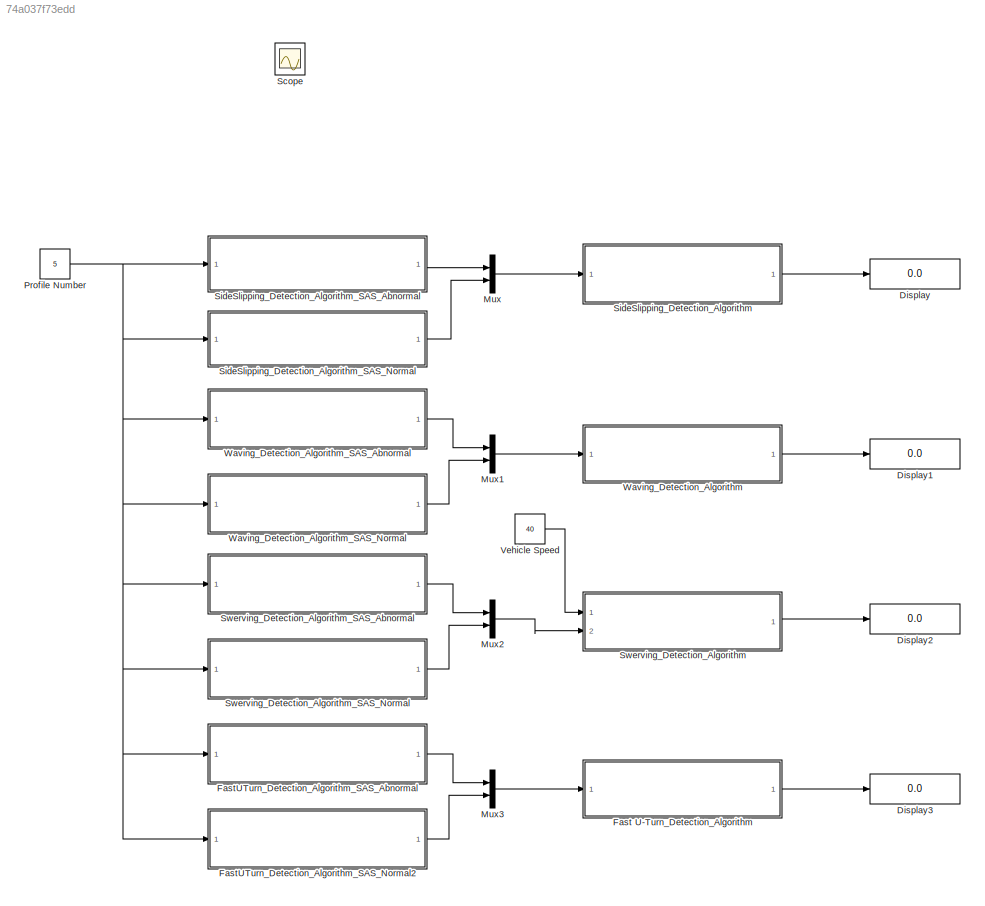
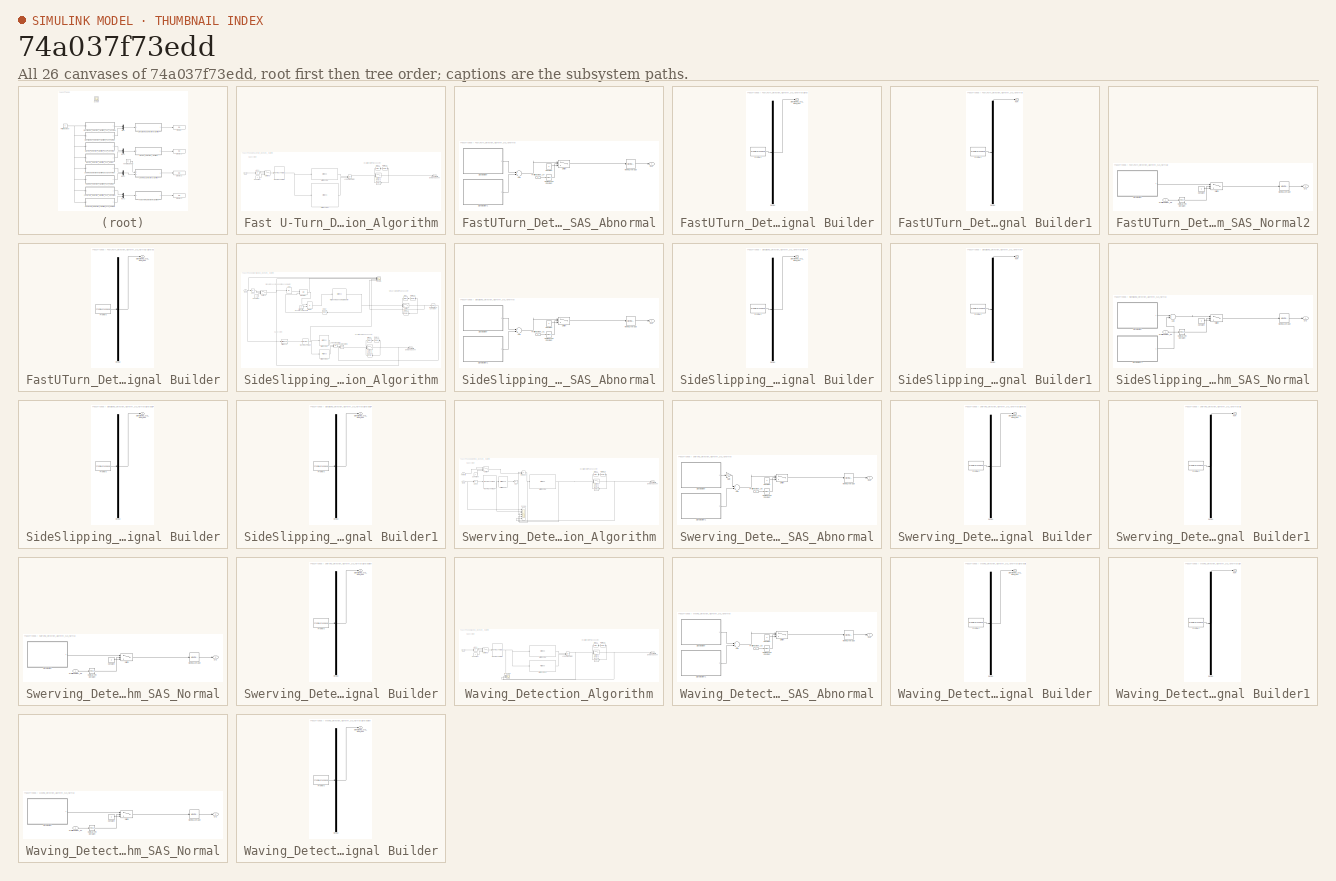
[diagram: thumbnail index - all 26 canvases of the model, root first then tree order]
MODEL slx_74a037f73edd
KIND model
CONFIG AbsTol = auto
CONFIG EnableMultiTasking = off
CONFIG FixedStep = 0.01
CONFIG MaxStep = auto
CONFIG MinStep = auto
CONFIG RelTol = 1e-3
CONFIG SampleTimeConstraint = Unconstrained
CONFIG Solver = FixedStepAuto
CONFIG SolverName = FixedStepAuto
CONFIG StartTime = 0.0
CONFIG StopTime = 120
BLOCK [Display] Display
  Commented = on
  Decimation = 1
  Ports = [1]
BLOCK [Display] Display1
  Commented = on
  Decimation = 1
  Ports = [1]
BLOCK [Display] Display2
  Decimation = 1
  Ports = [1]
BLOCK [Display] Display3
  Commented = on
  Decimation = 1
  Ports = [1]
BLOCK [SubSystem] Fast U-Turn_Detection_Algorithm
  Commented = on
  Ports = [1, 1]
  RequestExecContextInheritance = off
  Variant = off
BLOCK [Outport] Fast U-Turn_Detection_Algorithm/Abnormality Deletced Count
  IconDisplay = Port number
BLOCK [Abs] Fast U-Turn_Detection_Algorithm/Abs1
  SaturateOnIntegerOverflow = off
BLOCK [Bias] Fast U-Turn_Detection_Algorithm/Bias1
  Bias = 1
  SaturateOnIntegerOverflow = off
BLOCK [Constant] Fast U-Turn_Detection_Algorithm/Constant
  Value = 0
BLOCK [Delay] Fast U-Turn_Detection_Algorithm/Delay3
  DelayLength = 1
  InputPortMap = u0
  Ports = [1, 1]
BLOCK [Delay] Fast U-Turn_Detection_Algorithm/Delay4
  DelayLength = 1
  InputPortMap = u0
  Ports = [1, 1]
BLOCK [HitCross] Fast U-Turn_Detection_Algorithm/Hit Crossing
  HitCrossingDirection = rising
  HitCrossingOffset = 1.2
  Ports = [1, 1]
BLOCK [HitCross] Fast U-Turn_Detection_Algorithm/Hit Crossing1
  HitCrossingDirection = falling
  HitCrossingOffset = -0.5
  Ports = [1, 1]
BLOCK [Logic] Fast U-Turn_Detection_Algorithm/Logical Operator
  AllPortsSameDT = off
  Operator = OR
  OutDataTypeStr = boolean
  Ports = [2, 1]
BLOCK [Reference] Fast U-Turn_Detection_Algorithm/Moving Average  REF=dspstat3/Moving
Average
  Ports = [1, 1]
  SourceBlock = dspstat3/Moving\nAverage
  SourceProductBaseCode = DS
  SourceProductName = DSP System Toolbox
  SourceType = dsp.MovingAverage
BLOCK [Inport] Fast U-Turn_Detection_Algorithm/SAS
  IconDisplay = Port number
BLOCK [Switch] Fast U-Turn_Detection_Algorithm/Switch1
  Criteria = u2 > Threshold
  InputSameDT = off
  SaturateOnIntegerOverflow = off
BLOCK [Switch] Fast U-Turn_Detection_Algorithm/Switch2
  Criteria = u2 > Threshold
  InputSameDT = off
  SaturateOnIntegerOverflow = off
  Threshold = 1
BLOCK [SubSystem] FastUTurn_Detection_Algorithm_SAS_Abnormal
  Commented = on
  Ports = [1, 1]
  RequestExecContextInheritance = off
  Variant = off
BLOCK [Sum] FastUTurn_Detection_Algorithm_SAS_Abnormal/Add
  InputSameDT = off
  OutDataTypeStr = Inherit: Inherit via internal rule
  Ports = [2, 1]
  SaturateOnIntegerOverflow = off
BLOCK [Reference] FastUTurn_Detection_Algorithm_SAS_Abnormal/Compare To Constant  REF=simulink/Logic and Bit
Operations/Compare
To Constant
  Ports = [1, 1]
  SourceBlock = simulink/Logic and Bit\nOperations/Compare\nTo Constant
  SourceProductBaseCode = SL
  SourceProductName = Simulink
  SourceType = Compare To Constant
BLOCK [Constant] FastUTurn_Detection_Algorithm_SAS_Abnormal/Constant
  Value = 0
BLOCK [Reference] FastUTurn_Detection_Algorithm_SAS_Abnormal/Moving Average  REF=dspstat3/Moving
Average
  Ports = [1, 1]
  SourceBlock = dspstat3/Moving\nAverage
  SourceProductBaseCode = DS
  SourceProductName = DSP System Toolbox
  SourceType = dsp.MovingAverage
BLOCK [Inport] FastUTurn_Detection_Algorithm_SAS_Abnormal/ProfileNumber_07
  IconDisplay = Port number
BLOCK [Outport] FastUTurn_Detection_Algorithm_SAS_Abnormal/SAS
  IconDisplay = Port number
BLOCK [SubSystem] FastUTurn_Detection_Algorithm_SAS_Abnormal/Signal Builder
  ClipboardFcn = sigbuilder_block('clipboard');
  CloseFcn = sigbuilder_block('close');
  ContinueFcn = sigbuilder_block('continue');
  CopyFcn = sigbuilder_block('copy');
  DeleteFcn = sigbuilder_block('delete');
  LoadFcn = sigbuilder_block('load');
  MaskHideContents = on
  ModelCloseFcn = sigbuilder_block('modelClose');
  NameChangeFcn = sigbuilder_block('namechange');
  OpenFcn = sigbuilder_block('open',[6 30 1428 682.5 ]);
  PauseFcn = sigbuilder_block('pause');
  Ports = [0, 1]
  PreSaveFcn = sigbuilder_block('preSave');
  RequestExecContextInheritance = off
  StartFcn = sigbuilder_block('start');
  StopFcn = sigbuilder_block('stop');
  Tag = STV Subsys
  Variant = off
BLOCK [Demux] FastUTurn_Detection_Algorithm_SAS_Abnormal/Signal Builder/Demux
  Outputs = 1
  Ports = [1, 1]
  Tag = STV Demux
BLOCK [FromWorkspace] FastUTurn_Detection_Algorithm_SAS_Abnormal/Signal Builder/FromWs
  SampleTime = 0
  Tag = STV FromWs
  VariableName = tuvar
  ZeroCross = on
BLOCK [Outport] FastUTurn_Detection_Algorithm_SAS_Abnormal/Signal Builder/SideSlipping_SAS_Input_001
  IconDisplay = Port number
  Tag = STV Outport
BLOCK [SubSystem] FastUTurn_Detection_Algorithm_SAS_Abnormal/Signal Builder1
  ClipboardFcn = sigbuilder_block('clipboard');
  CloseFcn = sigbuilder_block('close');
  ContinueFcn = sigbuilder_block('continue');
  CopyFcn = sigbuilder_block('copy');
  DeleteFcn = sigbuilder_block('delete');
  LoadFcn = sigbuilder_block('load');
  MaskHideContents = on
  ModelCloseFcn = sigbuilder_block('modelClose');
  NameChangeFcn = sigbuilder_block('namechange');
  OpenFcn = sigbuilder_block('open',[6 30 1428 682.5 ]);
  PauseFcn = sigbuilder_block('pause');
  Ports = [0, 1]
  PreSaveFcn = sigbuilder_block('preSave');
  RequestExecContextInheritance = off
  StartFcn = sigbuilder_block('start');
  StopFcn = sigbuilder_block('stop');
  Tag = STV Subsys
  Variant = off
BLOCK [Demux] FastUTurn_Detection_Algorithm_SAS_Abnormal/Signal Builder1/Demux
  Outputs = 1
  Ports = [1, 1]
  Tag = STV Demux
BLOCK [FromWorkspace] FastUTurn_Detection_Algorithm_SAS_Abnormal/Signal Builder1/FromWs
  SampleTime = 0
  Tag = STV FromWs
  VariableName = tuvar
  ZeroCross = on
BLOCK [Outport] FastUTurn_Detection_Algorithm_SAS_Abnormal/Signal Builder1/NVH
  IconDisplay = Port number
  Tag = STV Outport
BLOCK [Switch] FastUTurn_Detection_Algorithm_SAS_Abnormal/Switch
  Criteria = u2 > Threshold
  InputSameDT = off
  SaturateOnIntegerOverflow = off
BLOCK [SubSystem] FastUTurn_Detection_Algorithm_SAS_Normal2
  Commented = on
  Ports = [1, 1]
  RequestExecContextInheritance = off
  Variant = off
BLOCK [Reference] FastUTurn_Detection_Algorithm_SAS_Normal2/Compare To Constant  REF=simulink/Logic and Bit
Operations/Compare
To Constant
  Ports = [1, 1]
  SourceBlock = simulink/Logic and Bit\nOperations/Compare\nTo Constant
  SourceProductBaseCode = SL
  SourceProductName = Simulink
  SourceType = Compare To Constant
BLOCK [Constant] FastUTurn_Detection_Algorithm_SAS_Normal2/Constant
  Value = 0
BLOCK [Reference] FastUTurn_Detection_Algorithm_SAS_Normal2/Moving Average  REF=dspstat3/Moving
Average
  Ports = [1, 1]
  SourceBlock = dspstat3/Moving\nAverage
  SourceProductBaseCode = DS
  SourceProductName = DSP System Toolbox
  SourceType = dsp.MovingAverage
BLOCK [Inport] FastUTurn_Detection_Algorithm_SAS_Normal2/ProfileNumber_08
  IconDisplay = Port number
BLOCK [Outport] FastUTurn_Detection_Algorithm_SAS_Normal2/SAS
  IconDisplay = Port number
BLOCK [SubSystem] FastUTurn_Detection_Algorithm_SAS_Normal2/Signal Builder
  ClipboardFcn = sigbuilder_block('clipboard');
  CloseFcn = sigbuilder_block('close');
  ContinueFcn = sigbuilder_block('continue');
  CopyFcn = sigbuilder_block('copy');
  DeleteFcn = sigbuilder_block('delete');
  LoadFcn = sigbuilder_block('load');
  MaskHideContents = on
  ModelCloseFcn = sigbuilder_block('modelClose');
  NameChangeFcn = sigbuilder_block('namechange');
  OpenFcn = sigbuilder_block('open',[6 63 1428 642 ]);
  PauseFcn = sigbuilder_block('pause');
  Ports = [0, 1]
  PreSaveFcn = sigbuilder_block('preSave');
  RequestExecContextInheritance = off
  StartFcn = sigbuilder_block('start');
  StopFcn = sigbuilder_block('stop');
  Tag = STV Subsys
  Variant = off
BLOCK [Demux] FastUTurn_Detection_Algorithm_SAS_Normal2/Signal Builder/Demux
  Outputs = 1
  Ports = [1, 1]
  Tag = STV Demux
BLOCK [FromWorkspace] FastUTurn_Detection_Algorithm_SAS_Normal2/Signal Builder/FromWs
  SampleTime = 0
  Tag = STV FromWs
  VariableName = tuvar
  ZeroCross = on
BLOCK [Outport] FastUTurn_Detection_Algorithm_SAS_Normal2/Signal Builder/SideSlipping_SAS_Input_001
  IconDisplay = Port number
  Tag = STV Outport
BLOCK [Switch] FastUTurn_Detection_Algorithm_SAS_Normal2/Switch
  Criteria = u2 > Threshold
  InputSameDT = off
  SaturateOnIntegerOverflow = off
BLOCK [Mux] Mux
  Commented = on
  DisplayOption = bar
  Inputs = 2
  Ports = [2, 1]
BLOCK [Mux] Mux1
  DisplayOption = bar
  Inputs = 2
  Ports = [2, 1]
BLOCK [Mux] Mux2
  DisplayOption = bar
  Inputs = 2
  Ports = [2, 1]
BLOCK [Mux] Mux3
  DisplayOption = bar
  Inputs = 2
  Ports = [2, 1]
BLOCK [Constant] Profile Number
  Value = 5
BLOCK [Scope] Scope
  IOType = viewer
  NumInputPorts = 1
  Ports = []
  ScopeSpecificationString = Simulink.scopes.TimeScopeBlockCfg('CurrentConfiguration', extmgr.ConfigurationSet(extmgr.Configuration('Core','General UI',true),extmgr.Configuration('Core','Source UI',true),extmgr.Configuration('Sources','WiredSimulink',true),extmgr.Configuration('Visuals','Time Domain',true,'SerializedDisplays',{struct('MinYLimReal','-5.36846','MaxYLimReal','12.73589','YLabelReal','SAS','MinYLimMag','0.00000','...<+1429ch>
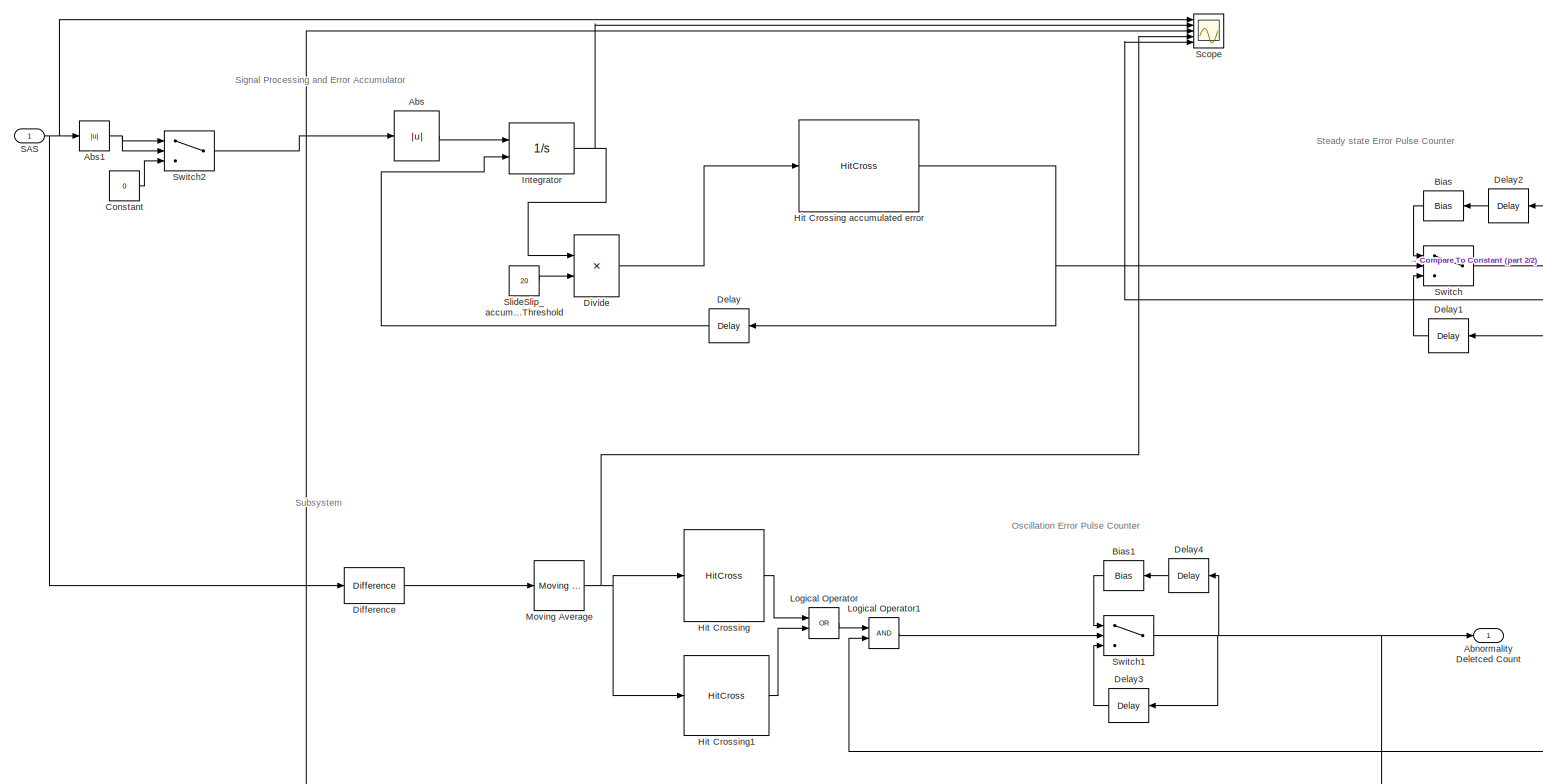
[diagram: SideSlipping_Detection_Algorithm - part 1/2, most of the canvas]
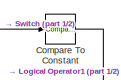
[diagram: SideSlipping_Detection_Algorithm - part 2/2, middle right region]
BLOCK [SubSystem] SideSlipping_Detection_Algorithm
  Commented = on
  Ports = [1, 1]
  RequestExecContextInheritance = off
  Variant = off
BLOCK [Outport] SideSlipping_Detection_Algorithm/Abnormality Deletced Count
  IconDisplay = Port number
BLOCK [Abs] SideSlipping_Detection_Algorithm/Abs
  SaturateOnIntegerOverflow = off
BLOCK [Abs] SideSlipping_Detection_Algorithm/Abs1
  SaturateOnIntegerOverflow = off
BLOCK [Bias] SideSlipping_Detection_Algorithm/Bias
  Bias = 1
  SaturateOnIntegerOverflow = off
BLOCK [Bias] SideSlipping_Detection_Algorithm/Bias1
  Bias = 1
  SaturateOnIntegerOverflow = off
BLOCK [Reference] SideSlipping_Detection_Algorithm/Compare To Constant  REF=simulink/Logic and Bit
Operations/Compare
To Constant
  Ports = [1, 1]
  SourceBlock = simulink/Logic and Bit\nOperations/Compare\nTo Constant
  SourceProductBaseCode = SL
  SourceProductName = Simulink
  SourceType = Compare To Constant
BLOCK [Constant] SideSlipping_Detection_Algorithm/Constant
  Value = 0
BLOCK [Delay] SideSlipping_Detection_Algorithm/Delay
  DelayLength = 1
  InputPortMap = u0
  Ports = [1, 1]
BLOCK [Delay] SideSlipping_Detection_Algorithm/Delay1
  DelayLength = 1
  InputPortMap = u0
  Ports = [1, 1]
BLOCK [Delay] SideSlipping_Detection_Algorithm/Delay2
  DelayLength = 1
  InputPortMap = u0
  Ports = [1, 1]
BLOCK [Delay] SideSlipping_Detection_Algorithm/Delay3
  DelayLength = 1
  InputPortMap = u0
  Ports = [1, 1]
BLOCK [Delay] SideSlipping_Detection_Algorithm/Delay4
  DelayLength = 1
  InputPortMap = u0
  Ports = [1, 1]
BLOCK [Reference] SideSlipping_Detection_Algorithm/Difference  REF=simulink/Discrete/Difference
  Ports = [1, 1]
  SourceBlock = simulink/Discrete/Difference
  SourceProductBaseCode = SL
  SourceProductName = Simulink
  SourceType = Difference
BLOCK [Product] SideSlipping_Detection_Algorithm/Divide
  InputSameDT = off
  Inputs = */
  OutDataTypeStr = Inherit: Inherit via internal rule
  Ports = [2, 1]
  RndMeth = Floor
  SaturateOnIntegerOverflow = off
BLOCK [HitCross] SideSlipping_Detection_Algorithm/Hit Crossing
  HitCrossingDirection = rising
  HitCrossingOffset = 0.1
  Ports = [1, 1]
BLOCK [HitCross] SideSlipping_Detection_Algorithm/Hit Crossing accumulated error
  HitCrossingDirection = rising
  HitCrossingOffset = 0.5
  Ports = [1, 1]
BLOCK [HitCross] SideSlipping_Detection_Algorithm/Hit Crossing1
  HitCrossingDirection = falling
  HitCrossingOffset = -0.1
  Ports = [1, 1]
BLOCK [Integrator] SideSlipping_Detection_Algorithm/Integrator
  ExternalReset = rising
  Ports = [2, 1]
BLOCK [Logic] SideSlipping_Detection_Algorithm/Logical Operator
  AllPortsSameDT = off
  Operator = OR
  OutDataTypeStr = boolean
  Ports = [2, 1]
BLOCK [Logic] SideSlipping_Detection_Algorithm/Logical Operator1
  AllPortsSameDT = off
  OutDataTypeStr = boolean
  Ports = [2, 1]
BLOCK [Reference] SideSlipping_Detection_Algorithm/Moving Average  REF=dspstat3/Moving
Average
  Ports = [1, 1]
  SourceBlock = dspstat3/Moving\nAverage
  SourceProductBaseCode = DS
  SourceProductName = DSP System Toolbox
  SourceType = dsp.MovingAverage
BLOCK [Inport] SideSlipping_Detection_Algorithm/SAS
  IconDisplay = Port number
BLOCK [Scope] SideSlipping_Detection_Algorithm/Scope
  NumInputPorts = 5
  Ports = [5]
  ScopeSpecificationString = Simulink.scopes.TimeScopeBlockCfg('CurrentConfiguration', extmgr.ConfigurationSet(extmgr.Configuration('Core','General UI',true),extmgr.Configuration('Core','Source UI',true),extmgr.Configuration('Sources','WiredSimulink',true,'DataLoggingVariableName','ScopeData1'),extmgr.Configuration('Visuals','Time Domain',true),extmgr.Configuration('Tools','Plot Navigation',true),extmgr.Configuration('Tools',...<+40ch>
BLOCK [Constant] SideSlipping_Detection_Algorithm/SlideSlip_accumulation_Threshold
  Value = 20
BLOCK [Switch] SideSlipping_Detection_Algorithm/Switch
  Criteria = u2 > Threshold
  InputSameDT = off
  SaturateOnIntegerOverflow = off
BLOCK [Switch] SideSlipping_Detection_Algorithm/Switch1
  Criteria = u2 > Threshold
  InputSameDT = off
  SaturateOnIntegerOverflow = off
BLOCK [Switch] SideSlipping_Detection_Algorithm/Switch2
  Criteria = u2 > Threshold
  InputSameDT = off
  SaturateOnIntegerOverflow = off
  Threshold = 5
BLOCK [SubSystem] SideSlipping_Detection_Algorithm_SAS_Abnormal
  Commented = on
  Ports = [1, 1]
  RequestExecContextInheritance = off
  Variant = off
BLOCK [Sum] SideSlipping_Detection_Algorithm_SAS_Abnormal/Add
  InputSameDT = off
  OutDataTypeStr = Inherit: Inherit via internal rule
  Ports = [2, 1]
  SaturateOnIntegerOverflow = off
BLOCK [Reference] SideSlipping_Detection_Algorithm_SAS_Abnormal/Compare To Constant  REF=simulink/Logic and Bit
Operations/Compare
To Constant
  Ports = [1, 1]
  SourceBlock = simulink/Logic and Bit\nOperations/Compare\nTo Constant
  SourceProductBaseCode = SL
  SourceProductName = Simulink
  SourceType = Compare To Constant
BLOCK [Constant] SideSlipping_Detection_Algorithm_SAS_Abnormal/Constant
  Value = 0
BLOCK [Reference] SideSlipping_Detection_Algorithm_SAS_Abnormal/Moving Average  REF=dspstat3/Moving
Average
  Ports = [1, 1]
  SourceBlock = dspstat3/Moving\nAverage
  SourceProductBaseCode = DS
  SourceProductName = DSP System Toolbox
  SourceType = dsp.MovingAverage
BLOCK [Inport] SideSlipping_Detection_Algorithm_SAS_Abnormal/ProfileNumber_01
  IconDisplay = Port number
BLOCK [Outport] SideSlipping_Detection_Algorithm_SAS_Abnormal/SAS
  IconDisplay = Port number
BLOCK [SubSystem] SideSlipping_Detection_Algorithm_SAS_Abnormal/Signal Builder
  ClipboardFcn = sigbuilder_block('clipboard');
  CloseFcn = sigbuilder_block('close');
  ContinueFcn = sigbuilder_block('continue');
  CopyFcn = sigbuilder_block('copy');
  DeleteFcn = sigbuilder_block('delete');
  LoadFcn = sigbuilder_block('load');
  MaskHideContents = on
  ModelCloseFcn = sigbuilder_block('modelClose');
  NameChangeFcn = sigbuilder_block('namechange');
  OpenFcn = sigbuilder_block('open',[6 30 1428 682.5 ]);
  PauseFcn = sigbuilder_block('pause');
  Ports = [0, 1]
  PreSaveFcn = sigbuilder_block('preSave');
  RequestExecContextInheritance = off
  StartFcn = sigbuilder_block('start');
  StopFcn = sigbuilder_block('stop');
  Tag = STV Subsys
  Variant = off
BLOCK [Demux] SideSlipping_Detection_Algorithm_SAS_Abnormal/Signal Builder/Demux
  Outputs = 1
  Ports = [1, 1]
  Tag = STV Demux
BLOCK [FromWorkspace] SideSlipping_Detection_Algorithm_SAS_Abnormal/Signal Builder/FromWs
  SampleTime = 0
  Tag = STV FromWs
  VariableName = tuvar
  ZeroCross = on
BLOCK [Outport] SideSlipping_Detection_Algorithm_SAS_Abnormal/Signal Builder/SideSlipping_SAS_Input_001
  IconDisplay = Port number
  Tag = STV Outport
BLOCK [SubSystem] SideSlipping_Detection_Algorithm_SAS_Abnormal/Signal Builder1
  ClipboardFcn = sigbuilder_block('clipboard');
  CloseFcn = sigbuilder_block('close');
  ContinueFcn = sigbuilder_block('continue');
  CopyFcn = sigbuilder_block('copy');
  DeleteFcn = sigbuilder_block('delete');
  LoadFcn = sigbuilder_block('load');
  MaskHideContents = on
  ModelCloseFcn = sigbuilder_block('modelClose');
  NameChangeFcn = sigbuilder_block('namechange');
  OpenFcn = sigbuilder_block('open',[6 30 1428 682.5 ]);
  PauseFcn = sigbuilder_block('pause');
  Ports = [0, 1]
  PreSaveFcn = sigbuilder_block('preSave');
  RequestExecContextInheritance = off
  StartFcn = sigbuilder_block('start');
  StopFcn = sigbuilder_block('stop');
  Tag = STV Subsys
  Variant = off
BLOCK [Demux] SideSlipping_Detection_Algorithm_SAS_Abnormal/Signal Builder1/Demux
  Outputs = 1
  Ports = [1, 1]
  Tag = STV Demux
BLOCK [FromWorkspace] SideSlipping_Detection_Algorithm_SAS_Abnormal/Signal Builder1/FromWs
  SampleTime = 0
  Tag = STV FromWs
  VariableName = tuvar
  ZeroCross = on
BLOCK [Outport] SideSlipping_Detection_Algorithm_SAS_Abnormal/Signal Builder1/NVH
  IconDisplay = Port number
  Tag = STV Outport
BLOCK [Switch] SideSlipping_Detection_Algorithm_SAS_Abnormal/Switch
  Criteria = u2 > Threshold
  InputSameDT = off
  SaturateOnIntegerOverflow = off
BLOCK [SubSystem] SideSlipping_Detection_Algorithm_SAS_Normal
  Commented = on
  Ports = [1, 1]
  RequestExecContextInheritance = off
  Variant = off
BLOCK [Sum] SideSlipping_Detection_Algorithm_SAS_Normal/Add
  InputSameDT = off
  OutDataTypeStr = Inherit: Inherit via internal rule
  Ports = [2, 1]
  SaturateOnIntegerOverflow = off
BLOCK [Reference] SideSlipping_Detection_Algorithm_SAS_Normal/Compare To Constant  REF=simulink/Logic and Bit
Operations/Compare
To Constant
  Ports = [1, 1]
  SourceBlock = simulink/Logic and Bit\nOperations/Compare\nTo Constant
  SourceProductBaseCode = SL
  SourceProductName = Simulink
  SourceType = Compare To Constant
BLOCK [Constant] SideSlipping_Detection_Algorithm_SAS_Normal/Constant
  Value = 0
BLOCK [Reference] SideSlipping_Detection_Algorithm_SAS_Normal/Moving Average  REF=dspstat3/Moving
Average
  Ports = [1, 1]
  SourceBlock = dspstat3/Moving\nAverage
  SourceProductBaseCode = DS
  SourceProductName = DSP System Toolbox
  SourceType = dsp.MovingAverage
BLOCK [Inport] SideSlipping_Detection_Algorithm_SAS_Normal/ProfileNumber_02
  IconDisplay = Port number
BLOCK [Outport] SideSlipping_Detection_Algorithm_SAS_Normal/SAS
  IconDisplay = Port number
BLOCK [SubSystem] SideSlipping_Detection_Algorithm_SAS_Normal/Signal Builder
  ClipboardFcn = sigbuilder_block('clipboard');
  CloseFcn = sigbuilder_block('close');
  ContinueFcn = sigbuilder_block('continue');
  CopyFcn = sigbuilder_block('copy');
  DeleteFcn = sigbuilder_block('delete');
  LoadFcn = sigbuilder_block('load');
  MaskHideContents = on
  ModelCloseFcn = sigbuilder_block('modelClose');
  NameChangeFcn = sigbuilder_block('namechange');
  OpenFcn = sigbuilder_block('open',[6 63 1428 642 ]);
  PauseFcn = sigbuilder_block('pause');
  Ports = [0, 1]
  PreSaveFcn = sigbuilder_block('preSave');
  RequestExecContextInheritance = off
  StartFcn = sigbuilder_block('start');
  StopFcn = sigbuilder_block('stop');
  Tag = STV Subsys
  Variant = off
BLOCK [Demux] SideSlipping_Detection_Algorithm_SAS_Normal/Signal Builder/Demux
  Outputs = 1
  Ports = [1, 1]
  Tag = STV Demux
BLOCK [FromWorkspace] SideSlipping_Detection_Algorithm_SAS_Normal/Signal Builder/FromWs
  SampleTime = 0
  Tag = STV FromWs
  VariableName = tuvar
  ZeroCross = on
BLOCK [Outport] SideSlipping_Detection_Algorithm_SAS_Normal/Signal Builder/SideSlipping_SAS_Input_001
  IconDisplay = Port number
  Tag = STV Outport
BLOCK [SubSystem] SideSlipping_Detection_Algorithm_SAS_Normal/Signal Builder1
  ClipboardFcn = sigbuilder_block('clipboard');
  CloseFcn = sigbuilder_block('close');
  ContinueFcn = sigbuilder_block('continue');
  CopyFcn = sigbuilder_block('copy');
  DeleteFcn = sigbuilder_block('delete');
  LoadFcn = sigbuilder_block('load');
  MaskHideContents = on
  ModelCloseFcn = sigbuilder_block('modelClose');
  NameChangeFcn = sigbuilder_block('namechange');
  OpenFcn = sigbuilder_block('open',[6 63 1428 642 ]);
  PauseFcn = sigbuilder_block('pause');
  Ports = [0, 1]
  PreSaveFcn = sigbuilder_block('preSave');
  RequestExecContextInheritance = off
  StartFcn = sigbuilder_block('start');
  StopFcn = sigbuilder_block('stop');
  Tag = STV Subsys
  Variant = off
BLOCK [Demux] SideSlipping_Detection_Algorithm_SAS_Normal/Signal Builder1/Demux
  Outputs = 1
  Ports = [1, 1]
  Tag = STV Demux
BLOCK [FromWorkspace] SideSlipping_Detection_Algorithm_SAS_Normal/Signal Builder1/FromWs
  SampleTime = 0
  Tag = STV FromWs
  VariableName = tuvar
  ZeroCross = on
BLOCK [Outport] SideSlipping_Detection_Algorithm_SAS_Normal/Signal Builder1/SideSlipping_SAS_Input_001
  IconDisplay = Port number
  Tag = STV Outport
BLOCK [Switch] SideSlipping_Detection_Algorithm_SAS_Normal/Switch
  Criteria = u2 > Threshold
  InputSameDT = off
  SaturateOnIntegerOverflow = off
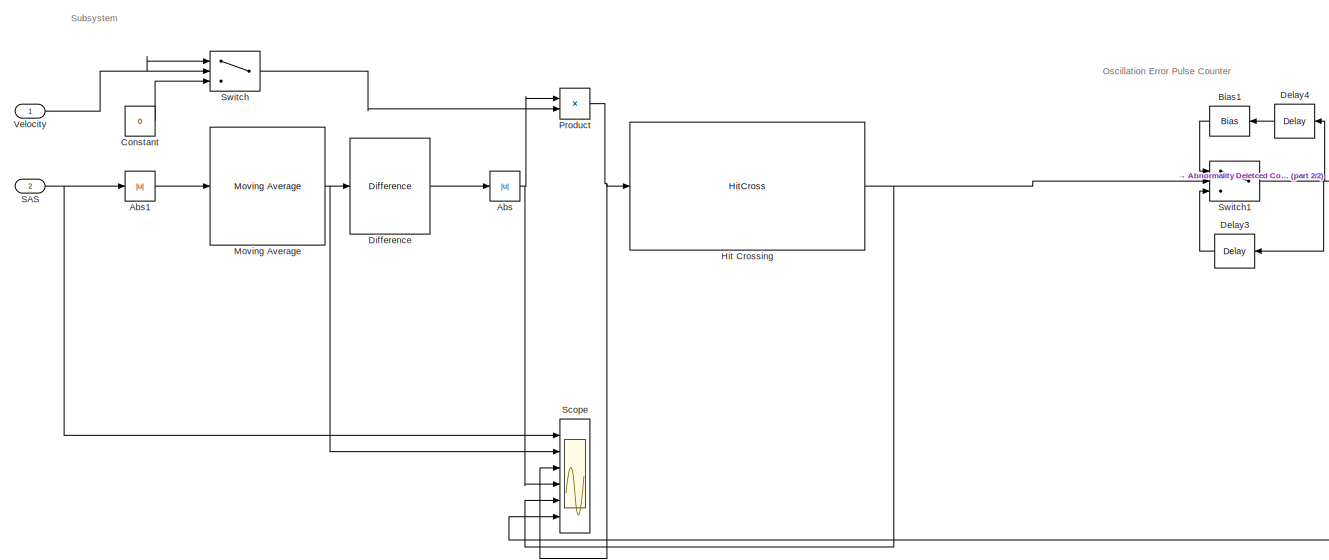
[diagram: Swerving_Detection_Algorithm - part 1/2, most of the canvas]
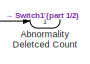
[diagram: Swerving_Detection_Algorithm - part 2/2, middle right region]
BLOCK [SubSystem] Swerving_Detection_Algorithm
  Ports = [2, 1]
  RequestExecContextInheritance = off
  Variant = off
BLOCK [Outport] Swerving_Detection_Algorithm/Abnormality Deletced Count
  IconDisplay = Port number
BLOCK [Abs] Swerving_Detection_Algorithm/Abs
  SaturateOnIntegerOverflow = off
BLOCK [Abs] Swerving_Detection_Algorithm/Abs1
  SaturateOnIntegerOverflow = off
BLOCK [Bias] Swerving_Detection_Algorithm/Bias1
  Bias = 1
  SaturateOnIntegerOverflow = off
BLOCK [Constant] Swerving_Detection_Algorithm/Constant
  Value = 0
BLOCK [Delay] Swerving_Detection_Algorithm/Delay3
  DelayLength = 1
  InputPortMap = u0
  Ports = [1, 1]
BLOCK [Delay] Swerving_Detection_Algorithm/Delay4
  DelayLength = 1
  InputPortMap = u0
  Ports = [1, 1]
BLOCK [Reference] Swerving_Detection_Algorithm/Difference  REF=simulink/Discrete/Difference
  Ports = [1, 1]
  SourceBlock = simulink/Discrete/Difference
  SourceProductBaseCode = SL
  SourceProductName = Simulink
  SourceType = Difference
BLOCK [HitCross] Swerving_Detection_Algorithm/Hit Crossing
  HitCrossingDirection = rising
  HitCrossingOffset = 30
  Ports = [1, 1]
BLOCK [Reference] Swerving_Detection_Algorithm/Moving Average  REF=dspstat3/Moving
Average
  Ports = [1, 1]
  SourceBlock = dspstat3/Moving\nAverage
  SourceProductBaseCode = DS
  SourceProductName = DSP System Toolbox
  SourceType = dsp.MovingAverage
BLOCK [Product] Swerving_Detection_Algorithm/Product
  InputSameDT = off
  OutDataTypeStr = Inherit: Inherit via internal rule
  Ports = [2, 1]
  RndMeth = Floor
  SaturateOnIntegerOverflow = off
BLOCK [Inport] Swerving_Detection_Algorithm/SAS
  IconDisplay = Port number
  Port = 2
BLOCK [Scope] Swerving_Detection_Algorithm/Scope
  NumInputPorts = 6
  Ports = [6]
  ScopeSpecificationString = Simulink.scopes.TimeScopeBlockCfg('CurrentConfiguration', extmgr.ConfigurationSet(extmgr.Configuration('Core','General UI',true),extmgr.Configuration('Core','Source UI',true),extmgr.Configuration('Sources','WiredSimulink',true,'DataLoggingVariableName','ScopeData3'),extmgr.Configuration('Visuals','Time Domain',true,'SerializedDisplays',{struct('MinYLimReal','-220.69413','MaxYLimReal','247.8524','Y...<+1619ch>
BLOCK [Switch] Swerving_Detection_Algorithm/Switch
  Criteria = u2 > Threshold
  InputSameDT = off
  SaturateOnIntegerOverflow = off
  Threshold = 15
BLOCK [Switch] Swerving_Detection_Algorithm/Switch1
  Criteria = u2 > Threshold
  InputSameDT = off
  SaturateOnIntegerOverflow = off
BLOCK [Inport] Swerving_Detection_Algorithm/Velocity
  IconDisplay = Port number
BLOCK [SubSystem] Swerving_Detection_Algorithm_SAS_Abnormal
  Ports = [1, 1]
  RequestExecContextInheritance = off
  Variant = off
BLOCK [Sum] Swerving_Detection_Algorithm_SAS_Abnormal/Add
  InputSameDT = off
  OutDataTypeStr = Inherit: Inherit via internal rule
  Ports = [2, 1]
  SaturateOnIntegerOverflow = off
BLOCK [Reference] Swerving_Detection_Algorithm_SAS_Abnormal/Compare To Constant  REF=simulink/Logic and Bit
Operations/Compare
To Constant
  Ports = [1, 1]
  SourceBlock = simulink/Logic and Bit\nOperations/Compare\nTo Constant
  SourceProductBaseCode = SL
  SourceProductName = Simulink
  SourceType = Compare To Constant
BLOCK [Constant] Swerving_Detection_Algorithm_SAS_Abnormal/Constant
  Value = 0
BLOCK [Gain] Swerving_Detection_Algorithm_SAS_Abnormal/Gain
  Gain = 200
  OutDataTypeStr = Inherit: Inherit via internal rule
  ParamDataTypeStr = Inherit: Inherit via internal rule
  SaturateOnIntegerOverflow = off
BLOCK [Reference] Swerving_Detection_Algorithm_SAS_Abnormal/Moving Average  REF=dspstat3/Moving
Average
  Ports = [1, 1]
  SourceBlock = dspstat3/Moving\nAverage
  SourceProductBaseCode = DS
  SourceProductName = DSP System Toolbox
  SourceType = dsp.MovingAverage
BLOCK [Inport] Swerving_Detection_Algorithm_SAS_Abnormal/ProfileNumber_05
  IconDisplay = Port number
BLOCK [Outport] Swerving_Detection_Algorithm_SAS_Abnormal/SAS
  IconDisplay = Port number
BLOCK [SubSystem] Swerving_Detection_Algorithm_SAS_Abnormal/Signal Builder
  ClipboardFcn = sigbuilder_block('clipboard');
  CloseFcn = sigbuilder_block('close');
  ContinueFcn = sigbuilder_block('continue');
  CopyFcn = sigbuilder_block('copy');
  DeleteFcn = sigbuilder_block('delete');
  LoadFcn = sigbuilder_block('load');
  MaskHideContents = on
  ModelCloseFcn = sigbuilder_block('modelClose');
  NameChangeFcn = sigbuilder_block('namechange');
  OpenFcn = sigbuilder_block('open',[6 30 1428 682.5 ]);
  PauseFcn = sigbuilder_block('pause');
  Ports = [0, 1]
  PreSaveFcn = sigbuilder_block('preSave');
  RequestExecContextInheritance = off
  StartFcn = sigbuilder_block('start');
  StopFcn = sigbuilder_block('stop');
  Tag = STV Subsys
  Variant = off
BLOCK [Demux] Swerving_Detection_Algorithm_SAS_Abnormal/Signal Builder/Demux
  Outputs = 1
  Ports = [1, 1]
  Tag = STV Demux
BLOCK [FromWorkspace] Swerving_Detection_Algorithm_SAS_Abnormal/Signal Builder/FromWs
  SampleTime = 0
  Tag = STV FromWs
  VariableName = tuvar
  ZeroCross = on
BLOCK [Outport] Swerving_Detection_Algorithm_SAS_Abnormal/Signal Builder/SideSlipping_SAS_Input_001
  IconDisplay = Port number
  Tag = STV Outport
BLOCK [SubSystem] Swerving_Detection_Algorithm_SAS_Abnormal/Signal Builder1
  ClipboardFcn = sigbuilder_block('clipboard');
  CloseFcn = sigbuilder_block('close');
  ContinueFcn = sigbuilder_block('continue');
  CopyFcn = sigbuilder_block('copy');
  DeleteFcn = sigbuilder_block('delete');
  LoadFcn = sigbuilder_block('load');
  MaskHideContents = on
  ModelCloseFcn = sigbuilder_block('modelClose');
  NameChangeFcn = sigbuilder_block('namechange');
  OpenFcn = sigbuilder_block('open',[6 30 1428 682.5 ]);
  PauseFcn = sigbuilder_block('pause');
  Ports = [0, 1]
  PreSaveFcn = sigbuilder_block('preSave');
  RequestExecContextInheritance = off
  StartFcn = sigbuilder_block('start');
  StopFcn = sigbuilder_block('stop');
  Tag = STV Subsys
  Variant = off
BLOCK [Demux] Swerving_Detection_Algorithm_SAS_Abnormal/Signal Builder1/Demux
  Outputs = 1
  Ports = [1, 1]
  Tag = STV Demux
BLOCK [FromWorkspace] Swerving_Detection_Algorithm_SAS_Abnormal/Signal Builder1/FromWs
  SampleTime = 0
  Tag = STV FromWs
  VariableName = tuvar
  ZeroCross = on
BLOCK [Outport] Swerving_Detection_Algorithm_SAS_Abnormal/Signal Builder1/NVH
  IconDisplay = Port number
  Tag = STV Outport
BLOCK [Switch] Swerving_Detection_Algorithm_SAS_Abnormal/Switch
  Criteria = u2 > Threshold
  InputSameDT = off
  SaturateOnIntegerOverflow = off
BLOCK [SubSystem] Swerving_Detection_Algorithm_SAS_Normal
  Ports = [1, 1]
  RequestExecContextInheritance = off
  Variant = off
BLOCK [Reference] Swerving_Detection_Algorithm_SAS_Normal/Compare To Constant  REF=simulink/Logic and Bit
Operations/Compare
To Constant
  Ports = [1, 1]
  SourceBlock = simulink/Logic and Bit\nOperations/Compare\nTo Constant
  SourceProductBaseCode = SL
  SourceProductName = Simulink
  SourceType = Compare To Constant
BLOCK [Constant] Swerving_Detection_Algorithm_SAS_Normal/Constant
  Value = 0
BLOCK [Reference] Swerving_Detection_Algorithm_SAS_Normal/Moving Average  REF=dspstat3/Moving
Average
  Ports = [1, 1]
  SourceBlock = dspstat3/Moving\nAverage
  SourceProductBaseCode = DS
  SourceProductName = DSP System Toolbox
  SourceType = dsp.MovingAverage
BLOCK [Inport] Swerving_Detection_Algorithm_SAS_Normal/ProfileNumber_06
  IconDisplay = Port number
BLOCK [Outport] Swerving_Detection_Algorithm_SAS_Normal/SAS
  IconDisplay = Port number
BLOCK [SubSystem] Swerving_Detection_Algorithm_SAS_Normal/Signal Builder
  ClipboardFcn = sigbuilder_block('clipboard');
  CloseFcn = sigbuilder_block('close');
  ContinueFcn = sigbuilder_block('continue');
  CopyFcn = sigbuilder_block('copy');
  DeleteFcn = sigbuilder_block('delete');
  LoadFcn = sigbuilder_block('load');
  MaskHideContents = on
  ModelCloseFcn = sigbuilder_block('modelClose');
  NameChangeFcn = sigbuilder_block('namechange');
  OpenFcn = sigbuilder_block('open',[6 63 1428 642 ]);
  PauseFcn = sigbuilder_block('pause');
  Ports = [0, 1]
  PreSaveFcn = sigbuilder_block('preSave');
  RequestExecContextInheritance = off
  StartFcn = sigbuilder_block('start');
  StopFcn = sigbuilder_block('stop');
  Tag = STV Subsys
  Variant = off
BLOCK [Demux] Swerving_Detection_Algorithm_SAS_Normal/Signal Builder/Demux
  Outputs = 1
  Ports = [1, 1]
  Tag = STV Demux
BLOCK [FromWorkspace] Swerving_Detection_Algorithm_SAS_Normal/Signal Builder/FromWs
  SampleTime = 0
  Tag = STV FromWs
  VariableName = tuvar
  ZeroCross = on
BLOCK [Outport] Swerving_Detection_Algorithm_SAS_Normal/Signal Builder/SideSlipping_SAS_Input_001
  IconDisplay = Port number
  Tag = STV Outport
BLOCK [Switch] Swerving_Detection_Algorithm_SAS_Normal/Switch
  Criteria = u2 > Threshold
  InputSameDT = off
  SaturateOnIntegerOverflow = off
BLOCK [Constant] Vehicle Speed
  Value = 40
BLOCK [SubSystem] Waving_Detection_Algorithm
  Commented = on
  Ports = [1, 1]
  RequestExecContextInheritance = off
  Variant = off
BLOCK [Outport] Waving_Detection_Algorithm/Abnormality Deletced Count
  IconDisplay = Port number
BLOCK [Abs] Waving_Detection_Algorithm/Abs1
  SaturateOnIntegerOverflow = off
BLOCK [Bias] Waving_Detection_Algorithm/Bias1
  Bias = 1
  SaturateOnIntegerOverflow = off
BLOCK [Constant] Waving_Detection_Algorithm/Constant
  Value = 0
BLOCK [Delay] Waving_Detection_Algorithm/Delay3
  DelayLength = 1
  InputPortMap = u0
  Ports = [1, 1]
BLOCK [Delay] Waving_Detection_Algorithm/Delay4
  DelayLength = 1
  InputPortMap = u0
  Ports = [1, 1]
BLOCK [HitCross] Waving_Detection_Algorithm/Hit Crossing
  HitCrossingDirection = rising
  HitCrossingOffset = 1.0
  Ports = [1, 1]
BLOCK [HitCross] Waving_Detection_Algorithm/Hit Crossing1
  HitCrossingDirection = falling
  HitCrossingOffset = -0.5
  Ports = [1, 1]
BLOCK [Logic] Waving_Detection_Algorithm/Logical Operator
  AllPortsSameDT = off
  Operator = OR
  OutDataTypeStr = boolean
  Ports = [2, 1]
BLOCK [Reference] Waving_Detection_Algorithm/Moving Average  REF=dspstat3/Moving
Average
  Ports = [1, 1]
  SourceBlock = dspstat3/Moving\nAverage
  SourceProductBaseCode = DS
  SourceProductName = DSP System Toolbox
  SourceType = dsp.MovingAverage
BLOCK [Inport] Waving_Detection_Algorithm/SAS
  IconDisplay = Port number
BLOCK [Scope] Waving_Detection_Algorithm/Scope
  NumInputPorts = 3
  Ports = [3]
  ScopeSpecificationString = Simulink.scopes.TimeScopeBlockCfg('CurrentConfiguration', extmgr.ConfigurationSet(extmgr.Configuration('Core','General UI',true),extmgr.Configuration('Core','Source UI',true),extmgr.Configuration('Sources','WiredSimulink',true,'DataLoggingVariableName','ScopeData2'),extmgr.Configuration('Visuals','Time Domain',true,'SerializedDisplays',{struct('MinYLimReal','-0.875','MaxYLimReal','7.875','YLabelRe...<+1448ch>
BLOCK [Switch] Waving_Detection_Algorithm/Switch1
  Criteria = u2 > Threshold
  InputSameDT = off
  SaturateOnIntegerOverflow = off
BLOCK [Switch] Waving_Detection_Algorithm/Switch2
  Criteria = u2 > Threshold
  InputSameDT = off
  SaturateOnIntegerOverflow = off
  Threshold = 1
BLOCK [SubSystem] Waving_Detection_Algorithm_SAS_Abnormal
  Commented = on
  Ports = [1, 1]
  RequestExecContextInheritance = off
  Variant = off
BLOCK [Sum] Waving_Detection_Algorithm_SAS_Abnormal/Add
  InputSameDT = off
  OutDataTypeStr = Inherit: Inherit via internal rule
  Ports = [2, 1]
  SaturateOnIntegerOverflow = off
BLOCK [Reference] Waving_Detection_Algorithm_SAS_Abnormal/Compare To Constant  REF=simulink/Logic and Bit
Operations/Compare
To Constant
  Ports = [1, 1]
  SourceBlock = simulink/Logic and Bit\nOperations/Compare\nTo Constant
  SourceProductBaseCode = SL
  SourceProductName = Simulink
  SourceType = Compare To Constant
BLOCK [Constant] Waving_Detection_Algorithm_SAS_Abnormal/Constant
  Value = 0
BLOCK [Reference] Waving_Detection_Algorithm_SAS_Abnormal/Moving Average  REF=dspstat3/Moving
Average
  Ports = [1, 1]
  SourceBlock = dspstat3/Moving\nAverage
  SourceProductBaseCode = DS
  SourceProductName = DSP System Toolbox
  SourceType = dsp.MovingAverage
BLOCK [Inport] Waving_Detection_Algorithm_SAS_Abnormal/ProfileNumber_03
  IconDisplay = Port number
BLOCK [Outport] Waving_Detection_Algorithm_SAS_Abnormal/SAS
  IconDisplay = Port number
BLOCK [SubSystem] Waving_Detection_Algorithm_SAS_Abnormal/Signal Builder
  ClipboardFcn = sigbuilder_block('clipboard');
  CloseFcn = sigbuilder_block('close');
  ContinueFcn = sigbuilder_block('continue');
  CopyFcn = sigbuilder_block('copy');
  DeleteFcn = sigbuilder_block('delete');
  LoadFcn = sigbuilder_block('load');
  MaskHideContents = on
  ModelCloseFcn = sigbuilder_block('modelClose');
  NameChangeFcn = sigbuilder_block('namechange');
  OpenFcn = sigbuilder_block('open',[6 30 1428 682.5 ]);
  PauseFcn = sigbuilder_block('pause');
  Ports = [0, 1]
  PreSaveFcn = sigbuilder_block('preSave');
  RequestExecContextInheritance = off
  StartFcn = sigbuilder_block('start');
  StopFcn = sigbuilder_block('stop');
  Tag = STV Subsys
  Variant = off
BLOCK [Demux] Waving_Detection_Algorithm_SAS_Abnormal/Signal Builder/Demux
  Outputs = 1
  Ports = [1, 1]
  Tag = STV Demux
BLOCK [FromWorkspace] Waving_Detection_Algorithm_SAS_Abnormal/Signal Builder/FromWs
  SampleTime = 0
  Tag = STV FromWs
  VariableName = tuvar
  ZeroCross = on
BLOCK [Outport] Waving_Detection_Algorithm_SAS_Abnormal/Signal Builder/SideSlipping_SAS_Input_001
  IconDisplay = Port number
  Tag = STV Outport
BLOCK [SubSystem] Waving_Detection_Algorithm_SAS_Abnormal/Signal Builder1
  ClipboardFcn = sigbuilder_block('clipboard');
  CloseFcn = sigbuilder_block('close');
  ContinueFcn = sigbuilder_block('continue');
  CopyFcn = sigbuilder_block('copy');
  DeleteFcn = sigbuilder_block('delete');
  LoadFcn = sigbuilder_block('load');
  MaskHideContents = on
  ModelCloseFcn = sigbuilder_block('modelClose');
  NameChangeFcn = sigbuilder_block('namechange');
  OpenFcn = sigbuilder_block('open',[6 30 1428 682.5 ]);
  PauseFcn = sigbuilder_block('pause');
  Ports = [0, 1]
  PreSaveFcn = sigbuilder_block('preSave');
  RequestExecContextInheritance = off
  StartFcn = sigbuilder_block('start');
  StopFcn = sigbuilder_block('stop');
  Tag = STV Subsys
  Variant = off
BLOCK [Demux] Waving_Detection_Algorithm_SAS_Abnormal/Signal Builder1/Demux
  Outputs = 1
  Ports = [1, 1]
  Tag = STV Demux
BLOCK [FromWorkspace] Waving_Detection_Algorithm_SAS_Abnormal/Signal Builder1/FromWs
  SampleTime = 0
  Tag = STV FromWs
  VariableName = tuvar
  ZeroCross = on
BLOCK [Outport] Waving_Detection_Algorithm_SAS_Abnormal/Signal Builder1/NVH
  IconDisplay = Port number
  Tag = STV Outport
BLOCK [Switch] Waving_Detection_Algorithm_SAS_Abnormal/Switch
  Criteria = u2 > Threshold
  InputSameDT = off
  SaturateOnIntegerOverflow = off
BLOCK [SubSystem] Waving_Detection_Algorithm_SAS_Normal
  Commented = on
  Ports = [1, 1]
  RequestExecContextInheritance = off
  Variant = off
BLOCK [Reference] Waving_Detection_Algorithm_SAS_Normal/Compare To Constant  REF=simulink/Logic and Bit
Operations/Compare
To Constant
  Ports = [1, 1]
  SourceBlock = simulink/Logic and Bit\nOperations/Compare\nTo Constant
  SourceProductBaseCode = SL
  SourceProductName = Simulink
  SourceType = Compare To Constant
BLOCK [Constant] Waving_Detection_Algorithm_SAS_Normal/Constant
  Value = 0
BLOCK [Reference] Waving_Detection_Algorithm_SAS_Normal/Moving Average  REF=dspstat3/Moving
Average
  Ports = [1, 1]
  SourceBlock = dspstat3/Moving\nAverage
  SourceProductBaseCode = DS
  SourceProductName = DSP System Toolbox
  SourceType = dsp.MovingAverage
BLOCK [Inport] Waving_Detection_Algorithm_SAS_Normal/ProfileNumber_04
  IconDisplay = Port number
BLOCK [Outport] Waving_Detection_Algorithm_SAS_Normal/SAS
  IconDisplay = Port number
BLOCK [SubSystem] Waving_Detection_Algorithm_SAS_Normal/Signal Builder
  ClipboardFcn = sigbuilder_block('clipboard');
  CloseFcn = sigbuilder_block('close');
  ContinueFcn = sigbuilder_block('continue');
  CopyFcn = sigbuilder_block('copy');
  DeleteFcn = sigbuilder_block('delete');
  LoadFcn = sigbuilder_block('load');
  MaskHideContents = on
  ModelCloseFcn = sigbuilder_block('modelClose');
  NameChangeFcn = sigbuilder_block('namechange');
  OpenFcn = sigbuilder_block('open',[6 63 1428 642 ]);
  PauseFcn = sigbuilder_block('pause');
  Ports = [0, 1]
  PreSaveFcn = sigbuilder_block('preSave');
  RequestExecContextInheritance = off
  StartFcn = sigbuilder_block('start');
  StopFcn = sigbuilder_block('stop');
  Tag = STV Subsys
  Variant = off
BLOCK [Demux] Waving_Detection_Algorithm_SAS_Normal/Signal Builder/Demux
  Outputs = 1
  Ports = [1, 1]
  Tag = STV Demux
BLOCK [FromWorkspace] Waving_Detection_Algorithm_SAS_Normal/Signal Builder/FromWs
  SampleTime = 0
  Tag = STV FromWs
  VariableName = tuvar
  ZeroCross = on
BLOCK [Outport] Waving_Detection_Algorithm_SAS_Normal/Signal Builder/SideSlipping_SAS_Input_001
  IconDisplay = Port number
  Tag = STV Outport
BLOCK [Switch] Waving_Detection_Algorithm_SAS_Normal/Switch
  Criteria = u2 > Threshold
  InputSameDT = off
  SaturateOnIntegerOverflow = off
ANNOTATION Fast U-Turn_Detection_Algorithm: Oscillation Error Pulse Counter
ANNOTATION Fast U-Turn_Detection_Algorithm: Subsystem
ANNOTATION SideSlipping_Detection_Algorithm: Oscillation Error Pulse Counter
ANNOTATION SideSlipping_Detection_Algorithm: Signal Processing and Error Accumulator
ANNOTATION SideSlipping_Detection_Algorithm: Steady state Error Pulse Counter
ANNOTATION SideSlipping_Detection_Algorithm: Subsystem
ANNOTATION Swerving_Detection_Algorithm: Oscillation Error Pulse Counter
ANNOTATION Swerving_Detection_Algorithm: Subsystem
ANNOTATION Waving_Detection_Algorithm: Oscillation Error Pulse Counter
ANNOTATION Waving_Detection_Algorithm: Subsystem
NET Fast U-Turn_Detection_Algorithm/Abs1:1 -> Fast U-Turn_Detection_Algorithm/Switch2:1, Fast U-Turn_Detection_Algorithm/Switch2:2
LINE Fast U-Turn_Detection_Algorithm/Bias1:1 -> Fast U-Turn_Detection_Algorithm/Switch1:1
LINE Fast U-Turn_Detection_Algorithm/Constant:1 -> Fast U-Turn_Detection_Algorithm/Switch2:3
LINE Fast U-Turn_Detection_Algorithm/Delay3:1 -> Fast U-Turn_Detection_Algorithm/Switch1:3
LINE Fast U-Turn_Detection_Algorithm/Delay4:1 -> Fast U-Turn_Detection_Algorithm/Bias1:1
LINE Fast U-Turn_Detection_Algorithm/Hit Crossing1:1 -> Fast U-Turn_Detection_Algorithm/Logical Operator:2
LINE Fast U-Turn_Detection_Algorithm/Hit Crossing:1 -> Fast U-Turn_Detection_Algorithm/Logical Operator:1
LINE Fast U-Turn_Detection_Algorithm/Logical Operator:1 -> Fast U-Turn_Detection_Algorithm/Switch1:2
NET Fast U-Turn_Detection_Algorithm/Moving Average:1 -> Fast U-Turn_Detection_Algorithm/Hit Crossing1:1, Fast U-Turn_Detection_Algorithm/Hit Crossing:1
LINE Fast U-Turn_Detection_Algorithm/SAS:1 -> Fast U-Turn_Detection_Algorithm/Abs1:1
NET Fast U-Turn_Detection_Algorithm/Switch1:1 -> Fast U-Turn_Detection_Algorithm/Abnormality Deletced Count:1, Fast U-Turn_Detection_Algorithm/Delay3:1, Fast U-Turn_Detection_Algorithm/Delay4:1
LINE Fast U-Turn_Detection_Algorithm/Switch2:1 -> Fast U-Turn_Detection_Algorithm/Moving Average:1
LINE Fast U-Turn_Detection_Algorithm:1 -> Display3:1
LINE FastUTurn_Detection_Algorithm_SAS_Abnormal/Add:1 -> FastUTurn_Detection_Algorithm_SAS_Abnormal/Switch:1
LINE FastUTurn_Detection_Algorithm_SAS_Abnormal/Compare To Constant:1 -> FastUTurn_Detection_Algorithm_SAS_Abnormal/Switch:2
LINE FastUTurn_Detection_Algorithm_SAS_Abnormal/Constant:1 -> FastUTurn_Detection_Algorithm_SAS_Abnormal/Switch:3
LINE FastUTurn_Detection_Algorithm_SAS_Abnormal/Moving Average:1 -> FastUTurn_Detection_Algorithm_SAS_Abnormal/SAS:1
LINE FastUTurn_Detection_Algorithm_SAS_Abnormal/ProfileNumber_07:1 -> FastUTurn_Detection_Algorithm_SAS_Abnormal/Compare To Constant:1
LINE FastUTurn_Detection_Algorithm_SAS_Abnormal/Signal Builder1:1 -> FastUTurn_Detection_Algorithm_SAS_Abnormal/Add:2
LINE FastUTurn_Detection_Algorithm_SAS_Abnormal/Signal Builder:1 -> FastUTurn_Detection_Algorithm_SAS_Abnormal/Add:1
LINE FastUTurn_Detection_Algorithm_SAS_Abnormal/Switch:1 -> FastUTurn_Detection_Algorithm_SAS_Abnormal/Moving Average:1
LINE FastUTurn_Detection_Algorithm_SAS_Abnormal:1 -> Mux3:1
LINE FastUTurn_Detection_Algorithm_SAS_Normal2/Compare To Constant:1 -> FastUTurn_Detection_Algorithm_SAS_Normal2/Switch:2
LINE FastUTurn_Detection_Algorithm_SAS_Normal2/Constant:1 -> FastUTurn_Detection_Algorithm_SAS_Normal2/Switch:3
LINE FastUTurn_Detection_Algorithm_SAS_Normal2/Moving Average:1 -> FastUTurn_Detection_Algorithm_SAS_Normal2/SAS:1
LINE FastUTurn_Detection_Algorithm_SAS_Normal2/ProfileNumber_08:1 -> FastUTurn_Detection_Algorithm_SAS_Normal2/Compare To Constant:1
LINE FastUTurn_Detection_Algorithm_SAS_Normal2/Signal Builder:1 -> FastUTurn_Detection_Algorithm_SAS_Normal2/Switch:1
LINE FastUTurn_Detection_Algorithm_SAS_Normal2/Switch:1 -> FastUTurn_Detection_Algorithm_SAS_Normal2/Moving Average:1
LINE FastUTurn_Detection_Algorithm_SAS_Normal2:1 -> Mux3:2
LINE Mux1:1 -> Waving_Detection_Algorithm:1
LINE Mux2:1 -> Swerving_Detection_Algorithm:2
LINE Mux3:1 -> Fast U-Turn_Detection_Algorithm:1
LINE Mux:1 -> SideSlipping_Detection_Algorithm:1
NET Profile Number:1 -> FastUTurn_Detection_Algorithm_SAS_Abnormal:1, FastUTurn_Detection_Algorithm_SAS_Normal2:1, SideSlipping_Detection_Algorithm_SAS_Abnormal:1, SideSlipping_Detection_Algorithm_SAS_Normal:1, Swerving_Detection_Algorithm_SAS_Abnormal:1, Swerving_Detection_Algorithm_SAS_Normal:1, Waving_Detection_Algorithm_SAS_Abnormal:1, Waving_Detection_Algorithm_SAS_Normal:1
NET SideSlipping_Detection_Algorithm/Abs1:1 -> SideSlipping_Detection_Algorithm/Switch2:1, SideSlipping_Detection_Algorithm/Switch2:2
LINE SideSlipping_Detection_Algorithm/Abs:1 -> SideSlipping_Detection_Algorithm/Integrator:1
LINE SideSlipping_Detection_Algorithm/Bias1:1 -> SideSlipping_Detection_Algorithm/Switch1:1
LINE SideSlipping_Detection_Algorithm/Bias:1 -> SideSlipping_Detection_Algorithm/Switch:1
LINE SideSlipping_Detection_Algorithm/Compare To Constant:1 -> SideSlipping_Detection_Algorithm/Logical Operator1:2
LINE SideSlipping_Detection_Algorithm/Constant:1 -> SideSlipping_Detection_Algorithm/Switch2:3
LINE SideSlipping_Detection_Algorithm/Delay1:1 -> SideSlipping_Detection_Algorithm/Switch:3
LINE SideSlipping_Detection_Algorithm/Delay2:1 -> SideSlipping_Detection_Algorithm/Bias:1
LINE SideSlipping_Detection_Algorithm/Delay3:1 -> SideSlipping_Detection_Algorithm/Switch1:3
LINE SideSlipping_Detection_Algorithm/Delay4:1 -> SideSlipping_Detection_Algorithm/Bias1:1
LINE SideSlipping_Detection_Algorithm/Delay:1 -> SideSlipping_Detection_Algorithm/Integrator:2
LINE SideSlipping_Detection_Algorithm/Difference:1 -> SideSlipping_Detection_Algorithm/Moving Average:1
LINE SideSlipping_Detection_Algorithm/Divide:1 -> SideSlipping_Detection_Algorithm/Hit Crossing accumulated error:1
NET SideSlipping_Detection_Algorithm/Hit Crossing accumulated error:1 -> SideSlipping_Detection_Algorithm/Delay:1, SideSlipping_Detection_Algorithm/Switch:2
LINE SideSlipping_Detection_Algorithm/Hit Crossing1:1 -> SideSlipping_Detection_Algorithm/Logical Operator:2
LINE SideSlipping_Detection_Algorithm/Hit Crossing:1 -> SideSlipping_Detection_Algorithm/Logical Operator:1
NET SideSlipping_Detection_Algorithm/Integrator:1 -> SideSlipping_Detection_Algorithm/Divide:1, SideSlipping_Detection_Algorithm/Scope:2
LINE SideSlipping_Detection_Algorithm/Logical Operator1:1 -> SideSlipping_Detection_Algorithm/Switch1:2
LINE SideSlipping_Detection_Algorithm/Logical Operator:1 -> SideSlipping_Detection_Algorithm/Logical Operator1:1
NET SideSlipping_Detection_Algorithm/Moving Average:1 -> SideSlipping_Detection_Algorithm/Hit Crossing1:1, SideSlipping_Detection_Algorithm/Hit Crossing:1, SideSlipping_Detection_Algorithm/Scope:4
NET SideSlipping_Detection_Algorithm/SAS:1 -> SideSlipping_Detection_Algorithm/Abs1:1, SideSlipping_Detection_Algorithm/Difference:1, SideSlipping_Detection_Algorithm/Scope:1
LINE SideSlipping_Detection_Algorithm/SlideSlip_accumulation_Threshold:1 -> SideSlipping_Detection_Algorithm/Divide:2
NET SideSlipping_Detection_Algorithm/Switch1:1 -> SideSlipping_Detection_Algorithm/Abnormality Deletced Count:1, SideSlipping_Detection_Algorithm/Delay3:1, SideSlipping_Detection_Algorithm/Delay4:1, SideSlipping_Detection_Algorithm/Scope:3
LINE SideSlipping_Detection_Algorithm/Switch2:1 -> SideSlipping_Detection_Algorithm/Abs:1
NET SideSlipping_Detection_Algorithm/Switch:1 -> SideSlipping_Detection_Algorithm/Compare To Constant:1, SideSlipping_Detection_Algorithm/Delay1:1, SideSlipping_Detection_Algorithm/Delay2:1, SideSlipping_Detection_Algorithm/Scope:5
LINE SideSlipping_Detection_Algorithm:1 -> Display:1
LINE SideSlipping_Detection_Algorithm_SAS_Abnormal/Add:1 -> SideSlipping_Detection_Algorithm_SAS_Abnormal/Switch:1
LINE SideSlipping_Detection_Algorithm_SAS_Abnormal/Compare To Constant:1 -> SideSlipping_Detection_Algorithm_SAS_Abnormal/Switch:2
LINE SideSlipping_Detection_Algorithm_SAS_Abnormal/Constant:1 -> SideSlipping_Detection_Algorithm_SAS_Abnormal/Switch:3
LINE SideSlipping_Detection_Algorithm_SAS_Abnormal/Moving Average:1 -> SideSlipping_Detection_Algorithm_SAS_Abnormal/SAS:1
LINE SideSlipping_Detection_Algorithm_SAS_Abnormal/ProfileNumber_01:1 -> SideSlipping_Detection_Algorithm_SAS_Abnormal/Compare To Constant:1
LINE SideSlipping_Detection_Algorithm_SAS_Abnormal/Signal Builder1:1 -> SideSlipping_Detection_Algorithm_SAS_Abnormal/Add:2
LINE SideSlipping_Detection_Algorithm_SAS_Abnormal/Signal Builder:1 -> SideSlipping_Detection_Algorithm_SAS_Abnormal/Add:1
LINE SideSlipping_Detection_Algorithm_SAS_Abnormal/Switch:1 -> SideSlipping_Detection_Algorithm_SAS_Abnormal/Moving Average:1
LINE SideSlipping_Detection_Algorithm_SAS_Abnormal:1 -> Mux:1
LINE SideSlipping_Detection_Algorithm_SAS_Normal/Add:1 -> SideSlipping_Detection_Algorithm_SAS_Normal/Switch:1
LINE SideSlipping_Detection_Algorithm_SAS_Normal/Compare To Constant:1 -> SideSlipping_Detection_Algorithm_SAS_Normal/Switch:2
LINE SideSlipping_Detection_Algorithm_SAS_Normal/Constant:1 -> SideSlipping_Detection_Algorithm_SAS_Normal/Switch:3
LINE SideSlipping_Detection_Algorithm_SAS_Normal/Moving Average:1 -> SideSlipping_Detection_Algorithm_SAS_Normal/SAS:1
LINE SideSlipping_Detection_Algorithm_SAS_Normal/ProfileNumber_02:1 -> SideSlipping_Detection_Algorithm_SAS_Normal/Compare To Constant:1
LINE SideSlipping_Detection_Algorithm_SAS_Normal/Signal Builder1:1 -> SideSlipping_Detection_Algorithm_SAS_Normal/Add:2
LINE SideSlipping_Detection_Algorithm_SAS_Normal/Signal Builder:1 -> SideSlipping_Detection_Algorithm_SAS_Normal/Add:1
LINE SideSlipping_Detection_Algorithm_SAS_Normal/Switch:1 -> SideSlipping_Detection_Algorithm_SAS_Normal/Moving Average:1
LINE SideSlipping_Detection_Algorithm_SAS_Normal:1 -> Mux:2
LINE Swerving_Detection_Algorithm/Abs1:1 -> Swerving_Detection_Algorithm/Moving Average:1
NET Swerving_Detection_Algorithm/Abs:1 -> Swerving_Detection_Algorithm/Product:1, Swerving_Detection_Algorithm/Scope:4
LINE Swerving_Detection_Algorithm/Bias1:1 -> Swerving_Detection_Algorithm/Switch1:1
LINE Swerving_Detection_Algorithm/Constant:1 -> Swerving_Detection_Algorithm/Switch:3
LINE Swerving_Detection_Algorithm/Delay3:1 -> Swerving_Detection_Algorithm/Switch1:3
LINE Swerving_Detection_Algorithm/Delay4:1 -> Swerving_Detection_Algorithm/Bias1:1
LINE Swerving_Detection_Algorithm/Difference:1 -> Swerving_Detection_Algorithm/Abs:1
NET Swerving_Detection_Algorithm/Hit Crossing:1 -> Swerving_Detection_Algorithm/Scope:5, Swerving_Detection_Algorithm/Switch1:2
NET Swerving_Detection_Algorithm/Moving Average:1 -> Swerving_Detection_Algorithm/Difference:1, Swerving_Detection_Algorithm/Scope:2
NET Swerving_Detection_Algorithm/Product:1 -> Swerving_Detection_Algorithm/Hit Crossing:1, Swerving_Detection_Algorithm/Scope:3
NET Swerving_Detection_Algorithm/SAS:1 -> Swerving_Detection_Algorithm/Abs1:1, Swerving_Detection_Algorithm/Scope:1
NET Swerving_Detection_Algorithm/Switch1:1 -> Swerving_Detection_Algorithm/Abnormality Deletced Count:1, Swerving_Detection_Algorithm/Delay3:1, Swerving_Detection_Algorithm/Delay4:1, Swerving_Detection_Algorithm/Scope:6
LINE Swerving_Detection_Algorithm/Switch:1 -> Swerving_Detection_Algorithm/Product:2
NET Swerving_Detection_Algorithm/Velocity:1 -> Swerving_Detection_Algorithm/Switch:1, Swerving_Detection_Algorithm/Switch:2
LINE Swerving_Detection_Algorithm:1 -> Display2:1
LINE Swerving_Detection_Algorithm_SAS_Abnormal/Add:1 -> Swerving_Detection_Algorithm_SAS_Abnormal/Switch:1
LINE Swerving_Detection_Algorithm_SAS_Abnormal/Compare To Constant:1 -> Swerving_Detection_Algorithm_SAS_Abnormal/Switch:2
LINE Swerving_Detection_Algorithm_SAS_Abnormal/Constant:1 -> Swerving_Detection_Algorithm_SAS_Abnormal/Switch:3
LINE Swerving_Detection_Algorithm_SAS_Abnormal/Gain:1 -> Swerving_Detection_Algorithm_SAS_Abnormal/Add:1
LINE Swerving_Detection_Algorithm_SAS_Abnormal/Moving Average:1 -> Swerving_Detection_Algorithm_SAS_Abnormal/SAS:1
LINE Swerving_Detection_Algorithm_SAS_Abnormal/ProfileNumber_05:1 -> Swerving_Detection_Algorithm_SAS_Abnormal/Compare To Constant:1
LINE Swerving_Detection_Algorithm_SAS_Abnormal/Signal Builder1:1 -> Swerving_Detection_Algorithm_SAS_Abnormal/Add:2
LINE Swerving_Detection_Algorithm_SAS_Abnormal/Signal Builder:1 -> Swerving_Detection_Algorithm_SAS_Abnormal/Gain:1
LINE Swerving_Detection_Algorithm_SAS_Abnormal/Switch:1 -> Swerving_Detection_Algorithm_SAS_Abnormal/Moving Average:1
LINE Swerving_Detection_Algorithm_SAS_Abnormal:1 -> Mux2:1
LINE Swerving_Detection_Algorithm_SAS_Normal/Compare To Constant:1 -> Swerving_Detection_Algorithm_SAS_Normal/Switch:2
LINE Swerving_Detection_Algorithm_SAS_Normal/Constant:1 -> Swerving_Detection_Algorithm_SAS_Normal/Switch:3
LINE Swerving_Detection_Algorithm_SAS_Normal/Moving Average:1 -> Swerving_Detection_Algorithm_SAS_Normal/SAS:1
LINE Swerving_Detection_Algorithm_SAS_Normal/ProfileNumber_06:1 -> Swerving_Detection_Algorithm_SAS_Normal/Compare To Constant:1
LINE Swerving_Detection_Algorithm_SAS_Normal/Signal Builder:1 -> Swerving_Detection_Algorithm_SAS_Normal/Switch:1
LINE Swerving_Detection_Algorithm_SAS_Normal/Switch:1 -> Swerving_Detection_Algorithm_SAS_Normal/Moving Average:1
LINE Swerving_Detection_Algorithm_SAS_Normal:1 -> Mux2:2
LINE Vehicle Speed:1 -> Swerving_Detection_Algorithm:1
NET Waving_Detection_Algorithm/Abs1:1 -> Waving_Detection_Algorithm/Switch2:1, Waving_Detection_Algorithm/Switch2:2
LINE Waving_Detection_Algorithm/Bias1:1 -> Waving_Detection_Algorithm/Switch1:1
LINE Waving_Detection_Algorithm/Constant:1 -> Waving_Detection_Algorithm/Switch2:3
LINE Waving_Detection_Algorithm/Delay3:1 -> Waving_Detection_Algorithm/Switch1:3
LINE Waving_Detection_Algorithm/Delay4:1 -> Waving_Detection_Algorithm/Bias1:1
LINE Waving_Detection_Algorithm/Hit Crossing1:1 -> Waving_Detection_Algorithm/Logical Operator:2
LINE Waving_Detection_Algorithm/Hit Crossing:1 -> Waving_Detection_Algorithm/Logical Operator:1
NET Waving_Detection_Algorithm/Logical Operator:1 -> Waving_Detection_Algorithm/Scope:2, Waving_Detection_Algorithm/Switch1:2
NET Waving_Detection_Algorithm/Moving Average:1 -> Waving_Detection_Algorithm/Hit Crossing1:1, Waving_Detection_Algorithm/Hit Crossing:1, Waving_Detection_Algorithm/Scope:1
LINE Waving_Detection_Algorithm/SAS:1 -> Waving_Detection_Algorithm/Abs1:1
NET Waving_Detection_Algorithm/Switch1:1 -> Waving_Detection_Algorithm/Abnormality Deletced Count:1, Waving_Detection_Algorithm/Delay3:1, Waving_Detection_Algorithm/Delay4:1, Waving_Detection_Algorithm/Scope:3
LINE Waving_Detection_Algorithm/Switch2:1 -> Waving_Detection_Algorithm/Moving Average:1
LINE Waving_Detection_Algorithm:1 -> Display1:1
LINE Waving_Detection_Algorithm_SAS_Abnormal/Add:1 -> Waving_Detection_Algorithm_SAS_Abnormal/Switch:1
LINE Waving_Detection_Algorithm_SAS_Abnormal/Compare To Constant:1 -> Waving_Detection_Algorithm_SAS_Abnormal/Switch:2
LINE Waving_Detection_Algorithm_SAS_Abnormal/Constant:1 -> Waving_Detection_Algorithm_SAS_Abnormal/Switch:3
LINE Waving_Detection_Algorithm_SAS_Abnormal/Moving Average:1 -> Waving_Detection_Algorithm_SAS_Abnormal/SAS:1
LINE Waving_Detection_Algorithm_SAS_Abnormal/ProfileNumber_03:1 -> Waving_Detection_Algorithm_SAS_Abnormal/Compare To Constant:1
LINE Waving_Detection_Algorithm_SAS_Abnormal/Signal Builder1:1 -> Waving_Detection_Algorithm_SAS_Abnormal/Add:2
LINE Waving_Detection_Algorithm_SAS_Abnormal/Signal Builder:1 -> Waving_Detection_Algorithm_SAS_Abnormal/Add:1
LINE Waving_Detection_Algorithm_SAS_Abnormal/Switch:1 -> Waving_Detection_Algorithm_SAS_Abnormal/Moving Average:1
LINE Waving_Detection_Algorithm_SAS_Abnormal:1 -> Mux1:1
LINE Waving_Detection_Algorithm_SAS_Normal/Compare To Constant:1 -> Waving_Detection_Algorithm_SAS_Normal/Switch:2
LINE Waving_Detection_Algorithm_SAS_Normal/Constant:1 -> Waving_Detection_Algorithm_SAS_Normal/Switch:3
LINE Waving_Detection_Algorithm_SAS_Normal/Moving Average:1 -> Waving_Detection_Algorithm_SAS_Normal/SAS:1
LINE Waving_Detection_Algorithm_SAS_Normal/ProfileNumber_04:1 -> Waving_Detection_Algorithm_SAS_Normal/Compare To Constant:1
LINE Waving_Detection_Algorithm_SAS_Normal/Signal Builder:1 -> Waving_Detection_Algorithm_SAS_Normal/Switch:1
LINE Waving_Detection_Algorithm_SAS_Normal/Switch:1 -> Waving_Detection_Algorithm_SAS_Normal/Moving Average:1
LINE Waving_Detection_Algorithm_SAS_Normal:1 -> Mux1:2
note: NET lines group one-source signal fan-out (src -> all destinations, sorted); 1:1 wires keep LINE
